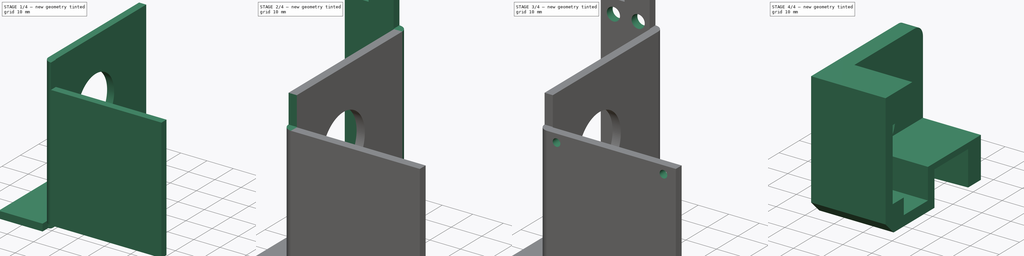
[diagram: build sequence overview — one tinted view per stage of 4, left to right]
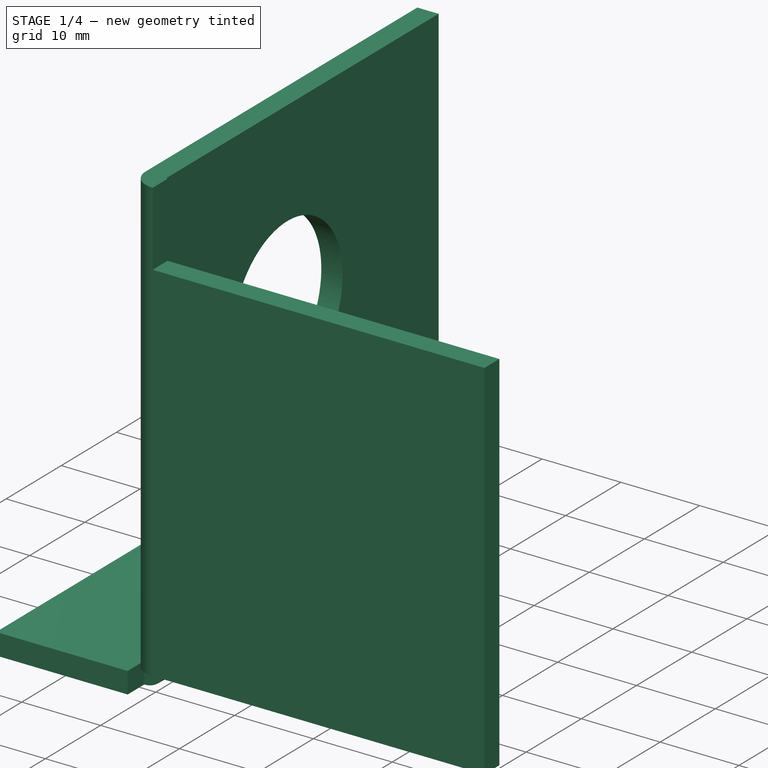
[diagram: stage 1 of 4 — iso view after this stage's code; geometry added in this stage tinted green]
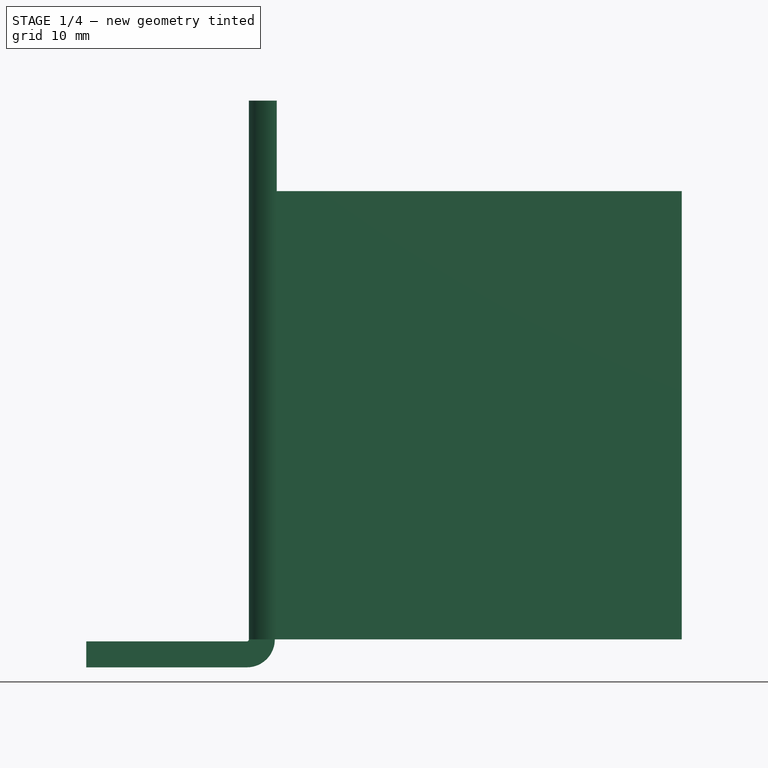
[diagram: stage 1 of 4 — front view after this stage's code; geometry added in this stage tinted green]
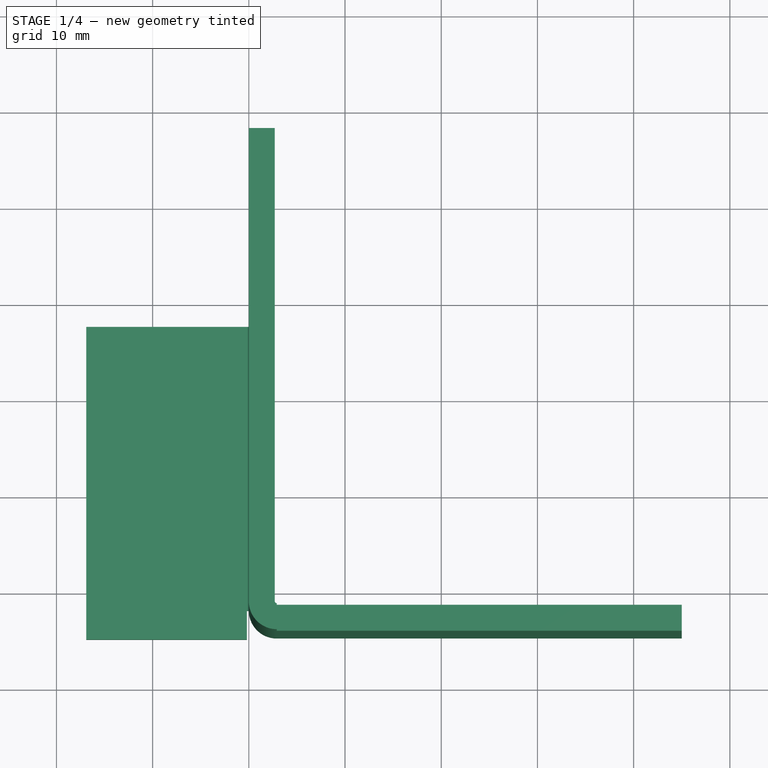
[diagram: stage 1 of 4 — top view after this stage's code; geometry added in this stage tinted green]
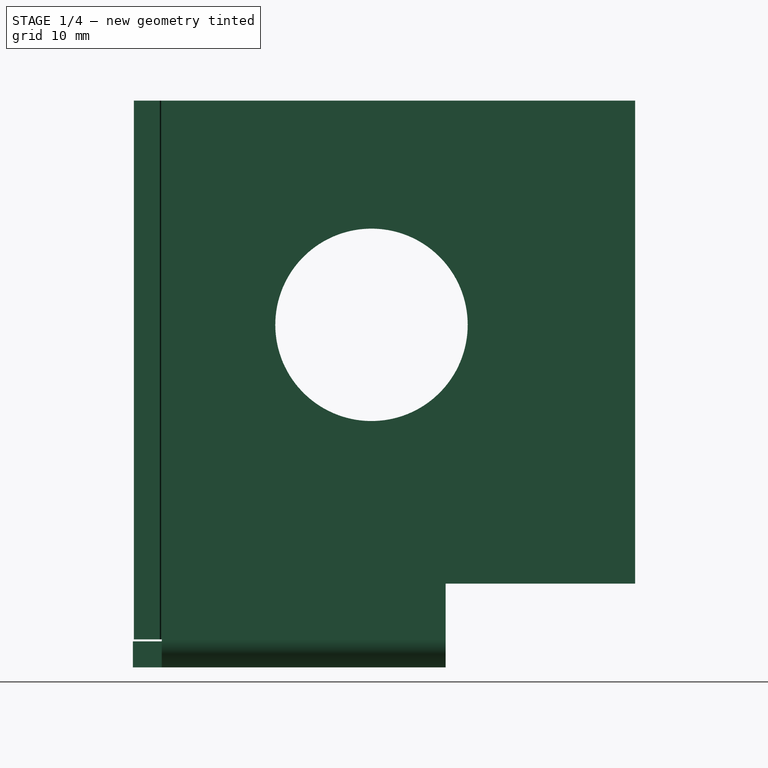
[diagram: stage 1 of 4 — right view after this stage's code; geometry added in this stage tinted green]
FCSTD DOCUMENT  (FreeCAD 2024.2R37240 (Git))
Label: Sovol SV04 Extruder Bracket Left
License: All rights reserved
LicenseURL: https://en.wikipedia.org/wiki/All_rights_reserved
objects: Sketcher::SketchObject×8, PartDesign::Pad×4, PartDesign::FeaturePython×3, PartDesign::Pocket×3, PartDesign::Body×2, App::VarSet×1, PartDesign::Hole×1, PartDesign::ShapeBinder×1
note: 30 computed .brp shape members not serialized (recipe doc carries the construction recipe); baked Part::Feature solids carry a one-line shape summary decoded from their .brp

FEATURE [Sketcher::SketchObject] Sketch
  AttachmentSupport = -> [YZ_Plane]
  FullyConstrained = false
  MapMode = 5
  Placement = pos=(0,0,0) rot=(0.57735,0.57735,0.57735;2.0944rad)
  sketch-geometry (7):
    g0: LineSegment StartX=-21.8 StartY=23.3 StartZ=0 EndX=-21.8 EndY=-32.7 EndZ=0
    g1: LineSegment StartX=7.7 StartY=-26.9 StartZ=0 EndX=27.4 EndY=-26.9 EndZ=0
    g2: LineSegment StartX=27.4 StartY=-26.9 StartZ=0 EndX=27.4 EndY=23.3 EndZ=0
    g3: LineSegment StartX=27.4 StartY=23.3 StartZ=0 EndX=-21.8 EndY=23.3 EndZ=0
    g4: LineSegment StartX=7.7 StartY=-26.9 StartZ=0 EndX=7.7 EndY=-32.7 EndZ=0
    g5: LineSegment StartX=7.7 StartY=-32.7 StartZ=0 EndX=-21.8 EndY=-32.7 EndZ=0
    g6: Circle CenterX=0 CenterY=0 CenterZ=0 NormalX=0 NormalY=0 NormalZ=1 AngleXU=0 Radius=10
  constraints (19):
    c: Coincident(g1,g2)
    c: Coincident(g2,g3)
    c: Coincident(g3,g0)
    c: Vertical(g0)
    c: Vertical(g2)
    c: Horizontal(g1)
    c: Horizontal(g3)
    c: DistanceX(g3,g3) = 49.2
    c: Coincident(g4,g5)
    c: Coincident(g5,g0)
    c: Coincident(g1,g4)
    c: DistanceY(g2,g2) = 50.2
    c: Horizontal(g5)
    c: Vertical(g4)
    c: DistanceY(g4,g4) = 5.8
    c: DistanceX(g5,g5) = 29.5
    c: Coincident(g-1,g6)
    c: Distance(g6,g2) = 27.4
    c: Distance(g6,g3) = 23.3
FEATURE [PartDesign::Pad] Pad
  Direction = (1,0,0)
  Length = 2.7
  Length2 = 10
  Placement = pos=(0,0,0) rot=(0.57735,0.57735,0.57735;2.0944rad)
  Profile = -> Sketch
  ReferenceAxis = -> Sketch [N_Axis]
  Refine = true
  Suppressed = false
  Type = 0
FEATURE [PartDesign::FeaturePython] Bend  # WARN: FeaturePython — macro-defined, semantics opaque (R4)
  AutoMiter = true
  BaseFeature = -> Pad
  BendType = 0
  LengthList = [42.1]
  LengthSpec = 0
  ReliefFactor = 0.7
  Suppressed = false
  UseReliefFactor = false
  angle = 90
  baseObject = -> Pad [Face4]
  bendAList = [90]
  extend1 = -9.4
  extend2 = 0
  gap1 = 0
  gap2 = 0
  invert = false
  kfactor = 0.5
  length = 42.1
  maxExtendDist = 5
  minGap = 0.2
  minReliefGap = 1
  miterangle1 = 0
  miterangle2 = 0
  offset = 0
  radius = 0.2
  reliefType = 0
  reliefd = 1
  reliefw = 0.8
  sketchflip = false
  sketchinvert = false
  unfold = false
FEATURE [App::VarSet] VarSet
  BendRadius = 1
FEATURE [PartDesign::FeaturePython] Bend001  # WARN: FeaturePython — macro-defined, semantics opaque (R4)
  AutoMiter = true
  BaseFeature = -> Bend
  BendType = 0
  LengthList = [16.7]
  LengthSpec = 0
  ReliefFactor = 0.7
  Suppressed = false
  UseReliefFactor = false
  angle = 90
  baseObject = -> Bend [Face14]
  bendAList = [90]
  extend1 = 0
  extend2 = 3
  gap1 = 0
  gap2 = 0
  invert = true
  kfactor = 0.5
  length = 16.7
  maxExtendDist = 5
  minGap = 0.2
  minReliefGap = 1
  miterangle1 = 0
  miterangle2 = 0
  offset = 0
  radius = 0.2
  reliefType = 0
  reliefd = 1
  reliefw = 0.8
  sketchflip = false
  sketchinvert = false
  unfold = false
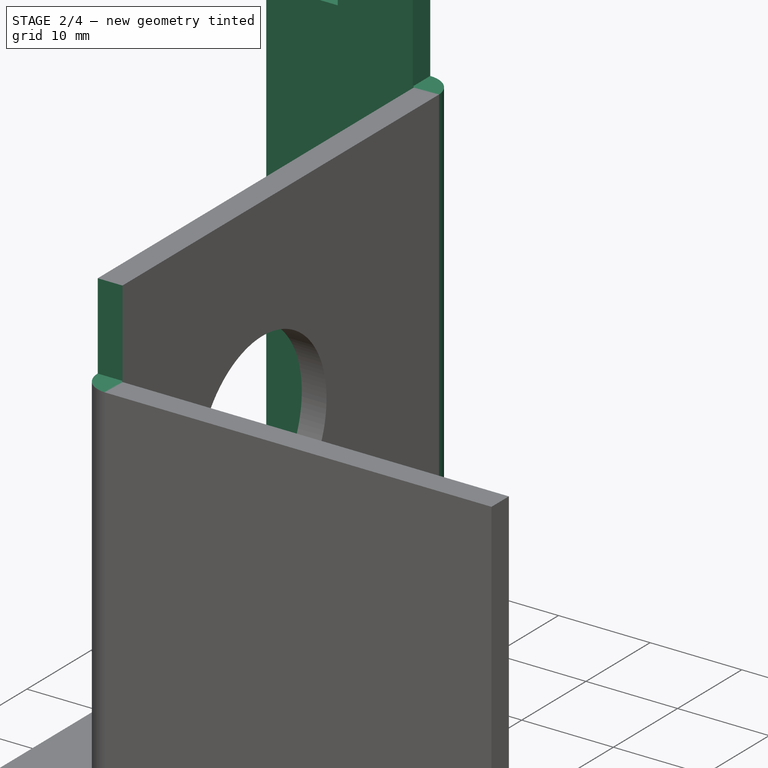
[diagram: stage 2 of 4 — iso view after this stage's code; geometry added in this stage tinted green]
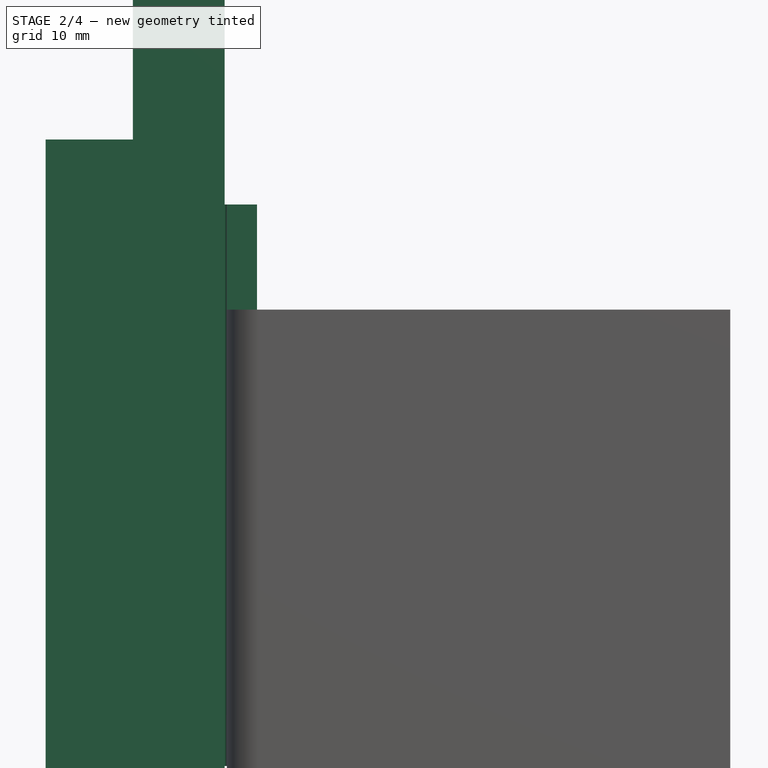
[diagram: stage 2 of 4 — front view after this stage's code; geometry added in this stage tinted green]
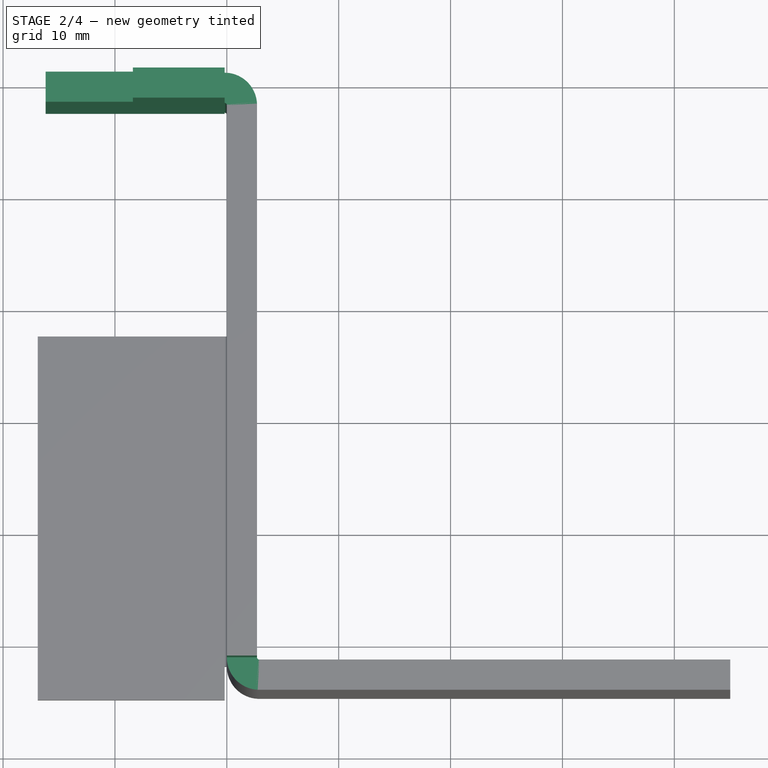
[diagram: stage 2 of 4 — top view after this stage's code; geometry added in this stage tinted green]
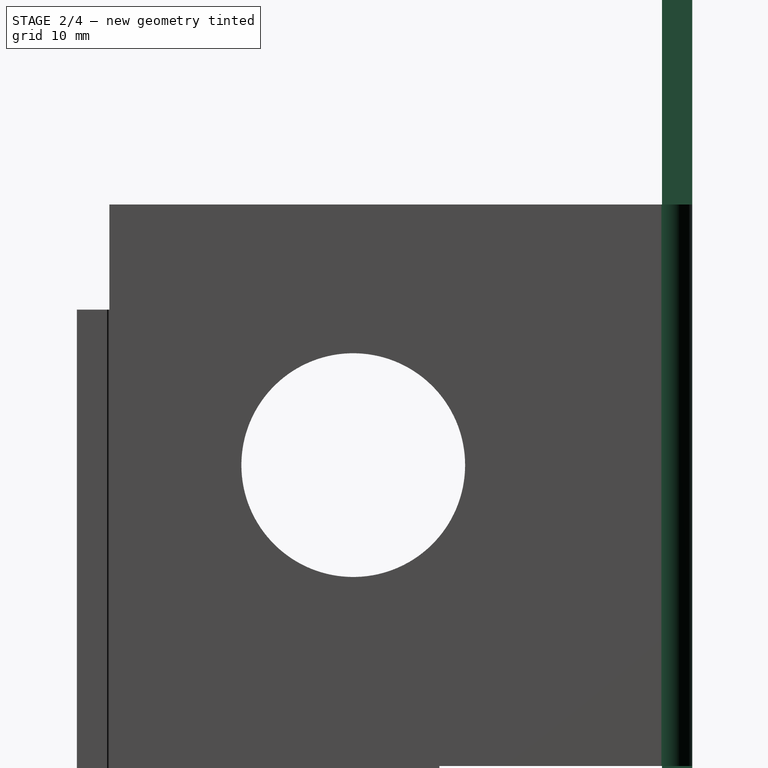
[diagram: stage 2 of 4 — right view after this stage's code; geometry added in this stage tinted green]
FEATURE [PartDesign::FeaturePython] Bend002  # WARN: FeaturePython — macro-defined, semantics opaque (R4)
  AutoMiter = true
  BaseFeature = -> Bend001
  BendType = 0
  LengthList = [16]
  LengthSpec = 0
  ReliefFactor = 0.7
  Suppressed = false
  UseReliefFactor = false
  angle = 90
  baseObject = -> Bend001 [Face19]
  bendAList = [90]
  extend1 = 5.8
  extend2 = 5.8
  gap1 = 0
  gap2 = 0
  invert = true
  kfactor = 0.5
  length = 16
  maxExtendDist = 5
  minGap = 0.2
  minReliefGap = 1
  miterangle1 = 0
  miterangle2 = 0
  offset = 0
  radius = 0.2
  reliefType = 0
  reliefd = 1
  reliefw = 0.8
  sketchflip = false
  sketchinvert = false
  unfold = false
FEATURE [Sketcher::SketchObject] Sketch001
  AttachmentSupport = -> [Bend002]
  ExternalGeometry = -> [Bend002]
  FullyConstrained = true
  MapMode = 5
  Placement = pos=(0,30.3,1e-14) rot=(0,0.707107,0.707107;3.14159rad)
  sketch-geometry (4):
    g0: LineSegment StartX=0.2 StartY=29.1 StartZ=0 EndX=0.2 EndY=50.1 EndZ=0
    g1: LineSegment StartX=0.2 StartY=50.1 StartZ=0 EndX=8.4 EndY=50.1 EndZ=0
    g2: LineSegment StartX=8.4 StartY=50.1 StartZ=0 EndX=8.4 EndY=29.1 EndZ=0
    g3: LineSegment StartX=8.4 StartY=29.1 StartZ=0 EndX=0.2 EndY=29.1 EndZ=0
  constraints (11):
    c: Coincident(g-3,g0)
    c: Vertical(g0)
    c: Coincident(g0,g1)
    c: Horizontal(g1)
    c: Coincident(g1,g2)
    c: PointOnObject(g2,g-3)
    c: Vertical(g2)
    c: Coincident(g2,g3)
    c: Coincident(g3,g0)
    c: DistanceY(g2,g2) = 21
    c: DistanceX(g1,g1) = 8.2
FEATURE [PartDesign::Pad] Pad001
  BaseFeature = -> Bend002
  Direction = (0,1,-2e-16)
  Length = 10
  Length2 = 10
  Profile = -> Sketch001
  ReferenceAxis = -> Sketch001 [N_Axis]
  Refine = true
  Suppressed = false
  Type = 3
  UpToFace = -> Bend002 [Face2]
FEATURE [PartDesign::Pocket] Pocket
  BaseFeature = -> Pad001
  Direction = (3e-16,-1e-16,-1)
  Length = 0
  Length2 = 5
  Profile = -> Bend002 [Face15]
  Refine = true
  Suppressed = false
  Type = 3
  UpToFace = -> Pad001 [Face24]
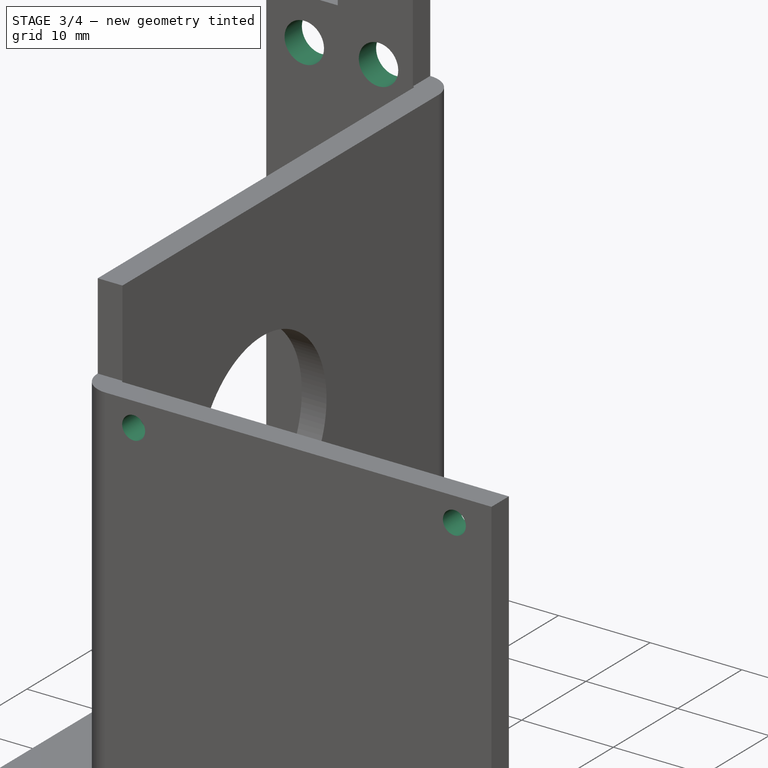
[diagram: stage 3 of 4 — iso view after this stage's code; geometry added in this stage tinted green]
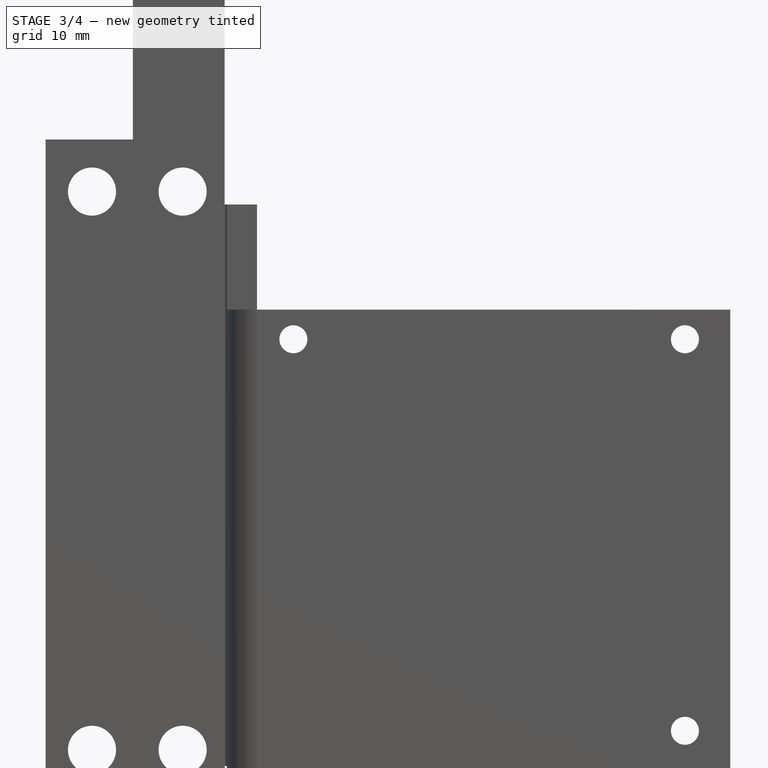
[diagram: stage 3 of 4 — front view after this stage's code; geometry added in this stage tinted green]
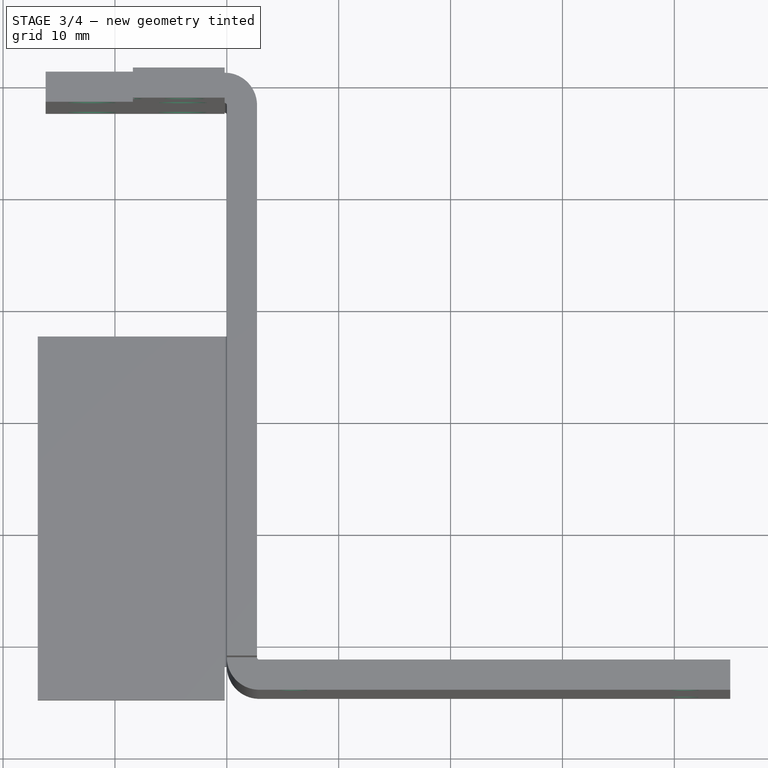
[diagram: stage 3 of 4 — top view after this stage's code; geometry added in this stage tinted green]
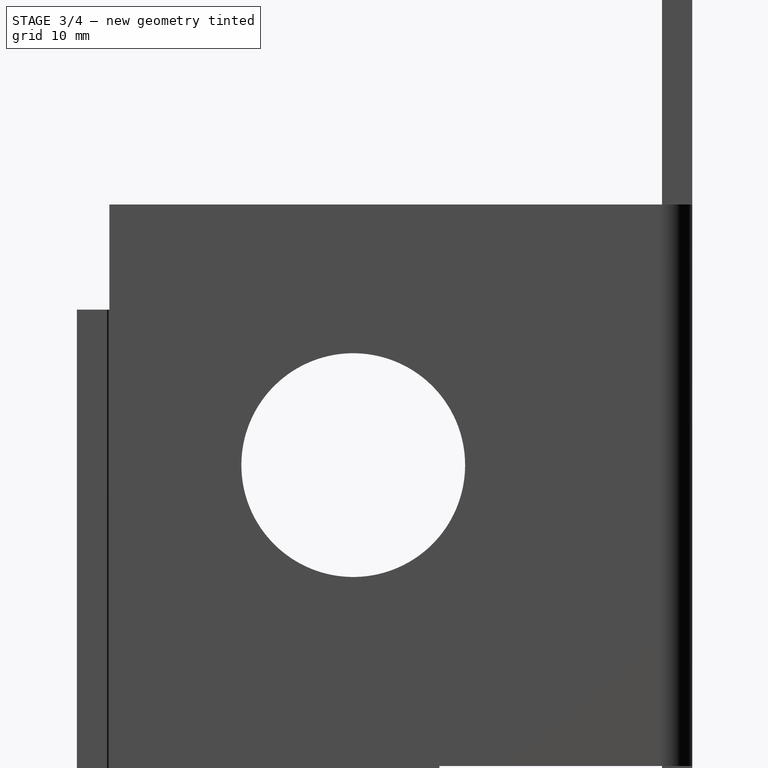
[diagram: stage 3 of 4 — right view after this stage's code; geometry added in this stage tinted green]
FEATURE [Sketcher::SketchObject] Sketch006
  AttachmentSupport = -> [Pocket]
  ExternalGeometry = -> [Pocket]
  FullyConstrained = true
  MapMode = 5
  Placement = pos=(7.6e-15,30.3,0) rot=(0,0.707107,0.707107;3.14159rad)
  sketch-geometry (7):
    g0: Circle CenterX=12.05 CenterY=24.45 CenterZ=0 NormalX=0 NormalY=0 NormalZ=1 AngleXU=0 Radius=2.15
    g1: Circle CenterX=3.95 CenterY=24.45 CenterZ=0 NormalX=0 NormalY=0 NormalZ=1 AngleXU=0 Radius=2.15
    g2: Circle CenterX=12.05 CenterY=-25.45 CenterZ=0 NormalX=0 NormalY=0 NormalZ=1 AngleXU=0 Radius=2.15
    g3: Circle CenterX=3.95 CenterY=-25.45 CenterZ=0 NormalX=0 NormalY=0 NormalZ=1 AngleXU=0 Radius=2.15
    g4: Circle CenterX=3.8 CenterY=44.9 CenterZ=0 NormalX=0 NormalY=0 NormalZ=1 AngleXU=0 Radius=1.8
    g5: ArcOfCircle CenterX=9.4 CenterY=44.9 CenterZ=0 NormalX=0 NormalY=0 NormalZ=1 AngleXU=0 Radius=1.8 StartAngle=2.15983 EndAngle=4.12336
    g6: LineSegment StartX=8.4 StartY=43.4033 StartZ=0 EndX=8.4 EndY=46.3967 EndZ=0
  constraints (22):
    c: Equal(g1,g0)
    c: Horizontal(g1,g0)
    c: Horizontal(g3,g2)
    c: Diameter(g1) = 4.3
    c: Equal(g2,g3)
    c: Equal(g3,g1)
    c: Vertical(g3,g1)
    c: Distance(g0,g-5) = 2
    c: Distance(g1,g-8) = 1.6
    c: Vertical(g2,g0)
    c: Distance(g4,g-8) = 1.8
    c: Distance(g4,g-4) = 3.4
    c: Diameter(g4) = 3.6
    c: PointOnObject(g5,g-9)
    c: PointOnObject(g5,g-9)
    c: Equal(g4,g5)
    c: Horizontal(g5,g4)
    c: Distance(g5,g4) = 2
    c: Coincident(g5,g6)
    c: Coincident(g5,g6)
    c: Distance(g0,g-3) = 2.5
    c: Distance(g2,g-6) = 5.1
FEATURE [PartDesign::Pocket] Pocket002
  BaseFeature = -> Pocket
  Direction = (0,-1,2e-16)
  Length = 5
  Length2 = 5
  Profile = -> Sketch006
  ReferenceAxis = -> Sketch006 [N_Axis]
  Refine = true
  Suppressed = false
  Type = 2
FEATURE [Sketcher::SketchObject] Sketch007
  AttachmentSupport = -> [Pocket002]
  ExternalGeometry = -> [Pocket002]
  FullyConstrained = true
  MapMode = 5
  Placement = pos=(0,-24.7,-8.2e-15) rot=(1,0,0;1.5708rad)
  sketch-geometry (3):
    g0: Circle CenterX=40.95 CenterY=11.25 CenterZ=0 NormalX=0 NormalY=0 NormalZ=1 AngleXU=0 Radius=1.15
    g1: Circle CenterX=5.95 CenterY=11.25 CenterZ=0 NormalX=0 NormalY=0 NormalZ=1 AngleXU=0 Radius=1.15
    g2: Circle CenterX=40.95 CenterY=-23.75 CenterZ=0 NormalX=0 NormalY=0 NormalZ=1 AngleXU=0 Radius=1.15
  constraints (9):
    c: Diameter(g0) = 2.3
    c: Distance(g0,g-3) = 1.5
    c: Equal(g1,g0)
    c: Horizontal(g1,g0)
    c: DistanceX(g1,g0) = 35
    c: Distance(g0,g-4) = 2.9
    c: Equal(g2,g0)
    c: Vertical(g0,g2)
    c: DistanceY(g2,g0) = 35
FEATURE [PartDesign::Hole] Hole
  BaseFeature = -> Pocket002
  CustomThreadClearance = 0
  Depth = 25
  DepthType = 0
  Diameter = 2.5
  DrillForDepth = false
  DrillPoint = 1
  DrillPointAngle = 118
  HoleCutCountersinkAngle = 90
  HoleCutCustomValues = false
  HoleCutDepth = 0
  HoleCutDiameter = 6.1
  HoleCutType = 0
  ModelThread = false
  Profile = -> Sketch007
  Refine = true
  Suppressed = false
  Tapered = false
  TaperedAngle = 90
  ThreadClass = 0
  ThreadDepth = 25
  ThreadDepthType = 0
  ThreadDirection = 0
  ThreadFit = 0
  ThreadSize = 9
  ThreadType = 1
  Threaded = true
  UseCustomThreadClearance = false
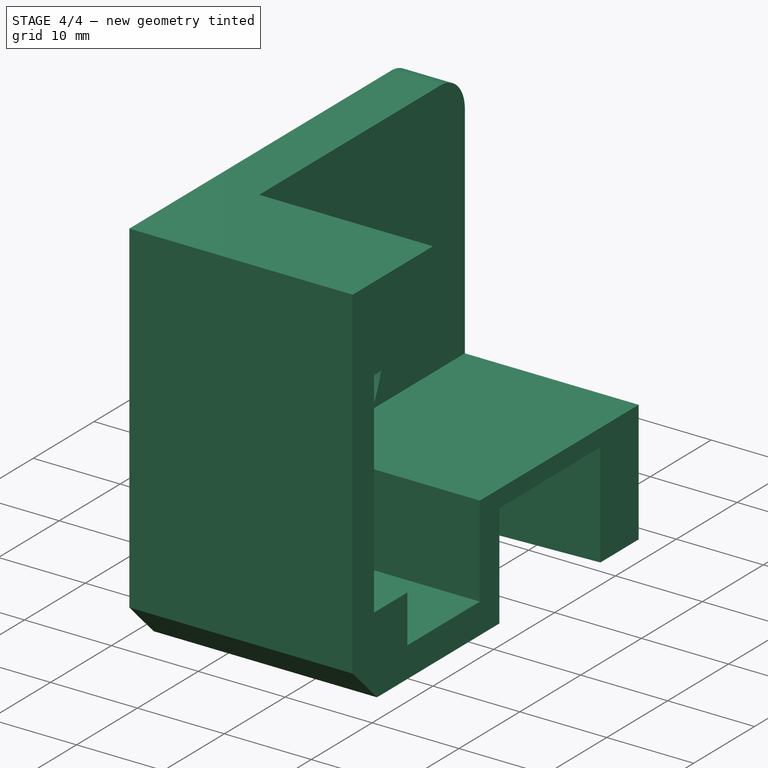
[diagram: stage 4 of 4 — iso view after this stage's code; geometry added in this stage tinted green]
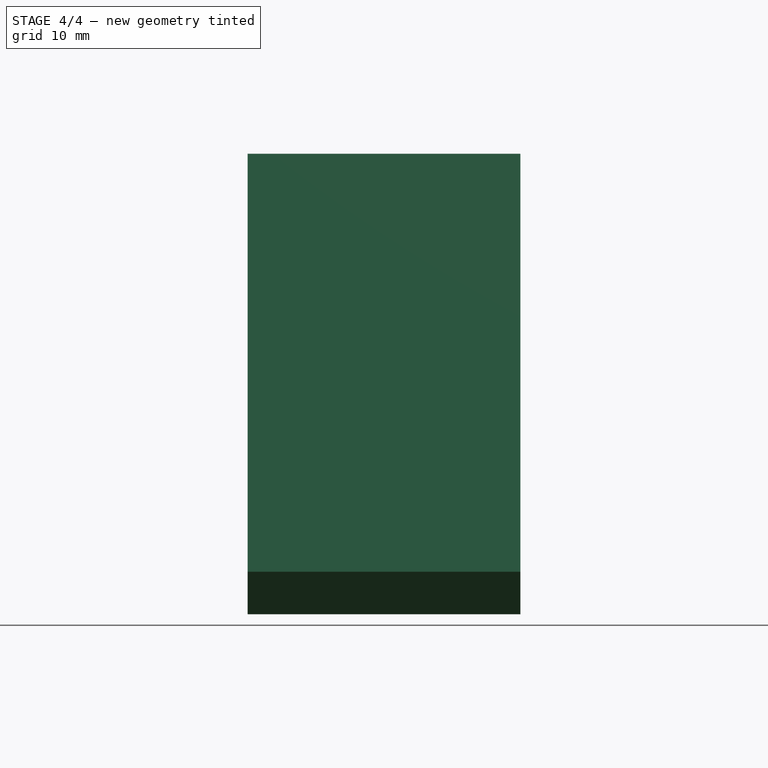
[diagram: stage 4 of 4 — front view after this stage's code; geometry added in this stage tinted green]
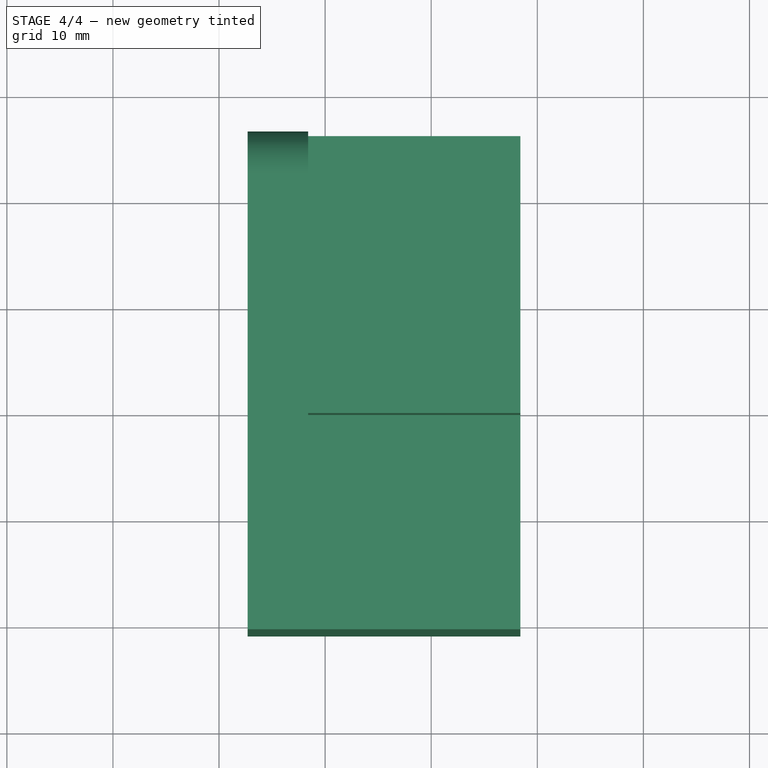
[diagram: stage 4 of 4 — top view after this stage's code; geometry added in this stage tinted green]
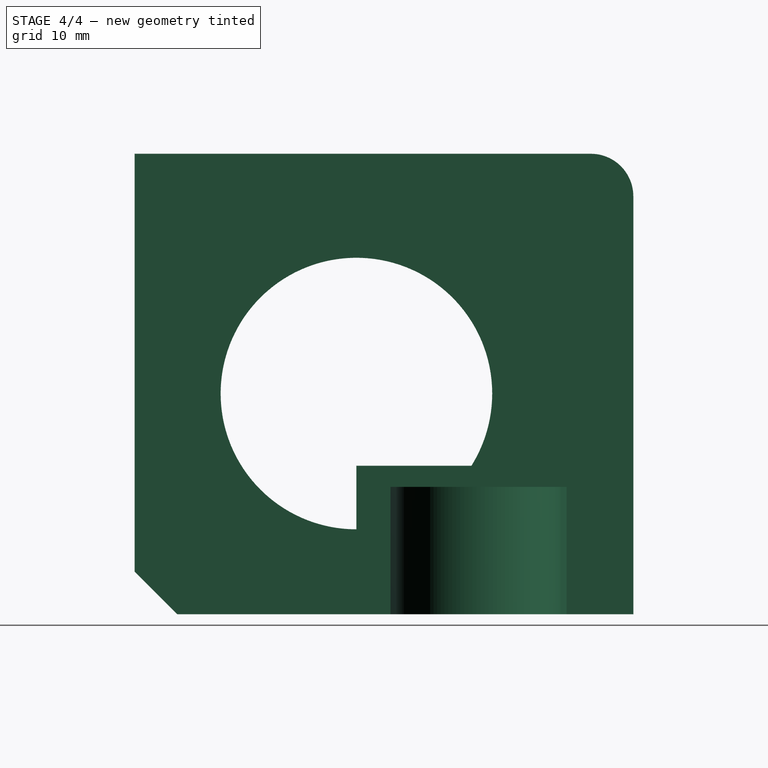
[diagram: stage 4 of 4 — right view after this stage's code; geometry added in this stage tinted green]
FEATURE [PartDesign::Body] Body
  Group = -> [Sketch,Pad,Bend,Bend001,Bend002,Sketch001,Pad001,Pocket,Sketch006,Pocket002,Sketch007,Hole]
  Origin = -> Origin
  Tip = -> Hole
FEATURE [PartDesign::ShapeBinder] ShapeBinder
  Support = -> [Body]
  TraceSupport = false
FEATURE [Sketcher::SketchObject] Sketch002
  AttachmentSupport = -> [ShapeBinder]
  ExternalGeometry = -> [ShapeBinder]
  FullyConstrained = false
  MapMode = 5
  Placement = pos=(-8.4,0,0) rot=(0.57735,-0.57735,-0.57735;2.0944rad)
  sketch-geometry (7):
    g0: LineSegment StartX=-20.9 StartY=22.6 StartZ=0 EndX=22.1 EndY=22.6 EndZ=0
    g1: LineSegment StartX=-16.9 StartY=-20.8 StartZ=0 EndX=26.1 EndY=-20.8 EndZ=0
    g2: ArcOfCircle CenterX=22.1 CenterY=18.6 CenterZ=0 NormalX=0 NormalY=0 NormalZ=1 AngleXU=0 Radius=4 StartAngle=0 EndAngle=1.5708
    g3: LineSegment StartX=26.1 StartY=18.6 StartZ=0 EndX=26.1 EndY=-20.8 EndZ=0
    g4: LineSegment StartX=-20.9 StartY=-16.8 StartZ=0 EndX=-20.9 EndY=22.6 EndZ=0
    g5: Circle CenterX=0 CenterY=0 CenterZ=0 NormalX=0 NormalY=0 NormalZ=1 AngleXU=0 Radius=12.8
    g6: LineSegment StartX=-16.9 StartY=-20.8 StartZ=0 EndX=-20.9 EndY=-16.8 EndZ=0
  constraints (17):
    c: Horizontal(g0)
    c: Horizontal(g1)
    c: Distance(g1,g0) = 43.4
    c: Coincident(g3,g1)
    c: Vertical(g3)
    c: Tangent(g2,g0) = 1.5708
    c: Tangent(g2,g3) = 1.5708
    c: Coincident(g4,g0)
    c: Vertical(g4)
    c: Distance(g3,g4) = 47
    c: DistanceX(g4,g1) = 4
    c: Radius(g2) = 4
    c: Coincident(g5,g-1)
    c: Diameter(g5) = 25.6
    c: Coincident(g6,g1)
    c: Angle(g6,g1) = 0.785398
    c: Coincident(g4,g6)
FEATURE [PartDesign::Pad] Pad002
  Direction = (-1,0,0)
  Length = 5.7
  Length2 = 10
  Profile = -> Sketch002
  ReferenceAxis = -> Sketch002 [N_Axis]
  Refine = true
  Suppressed = false
  Type = 0
FEATURE [Sketcher::SketchObject] Sketch003
  AttachmentSupport = -> [Pad002]
  ExternalGeometry = -> [ShapeBinder,Pad002]
  FullyConstrained = false
  MapMode = 5
  Placement = pos=(-14.1,0,0) rot=(0.57735,-0.57735,-0.57735;2.0944rad)
  expr: Constraints[1] = Sketch002.Constraints[2]
  expr: Constraints[5] = Sketch002.Constraints[10]
  expr: Constraints[6] = Sketch002.Constraints[11]
  expr: Constraints[8] = Sketch002.Constraints[13]
  sketch-geometry (21):
    g0: LineSegment StartX=-20.9 StartY=22.6 StartZ=0 EndX=22.1 EndY=22.6 EndZ=0
    g1: ArcOfCircle CenterX=22.1 CenterY=18.6 CenterZ=0 NormalX=0 NormalY=0 NormalZ=1 AngleXU=0 Radius=4 StartAngle=5e-16 EndAngle=1.5708
    g2: LineSegment StartX=26.1 StartY=18.6 StartZ=0 EndX=26.1 EndY=11.3725 EndZ=0
    g3: Circle CenterX=0 CenterY=0 CenterZ=0 NormalX=0 NormalY=0 NormalZ=1 AngleXU=0 Radius=12.8
    g4: LineSegment StartX=26.1 StartY=-6.8 StartZ=0 EndX=0 EndY=-6.8 EndZ=0
    g5: LineSegment StartX=0 StartY=-17.3 StartZ=0 EndX=-11.9 EndY=-17.3 EndZ=0
    g6: LineSegment StartX=-11.9 StartY=-11.8 StartZ=0 EndX=-17.4 EndY=-11.8 EndZ=0
    g7: LineSegment StartX=-17.4 StartY=12.9 StartZ=0 EndX=-11.9 EndY=12.9 EndZ=0
    g8: LineSegment StartX=-11.9 StartY=16.9 StartZ=0 EndX=-7.7 EndY=16.9 EndZ=0
    g9: GeomPoint X=-14.9 Y=-15.1 Z=0
    g10: GeomPoint X=-14.9 Y=16.9 Z=0
    g11: LineSegment StartX=-20.9 StartY=-16.8 StartZ=0 EndX=-20.9 EndY=22.6 EndZ=0
    g12: LineSegment StartX=-16.9 StartY=-20.8 StartZ=0 EndX=26.1 EndY=-20.8 EndZ=0
    g13: LineSegment StartX=26.1 StartY=-20.8 StartZ=0 EndX=26.1 EndY=-6.8 EndZ=0
    g14: LineSegment StartX=0 StartY=-17.3 StartZ=0 EndX=0 EndY=-6.8 EndZ=0
    g15: LineSegment StartX=-11.9 StartY=-11.8 StartZ=0 EndX=-11.9 EndY=-17.3 EndZ=0
    g16: LineSegment StartX=-17.4 StartY=-11.8 StartZ=0 EndX=-17.4 EndY=12.9 EndZ=0
    g17: LineSegment StartX=-11.9 StartY=12.9 StartZ=0 EndX=-11.9 EndY=16.9 EndZ=0
    g18: LineSegment StartX=-7.7 StartY=16.9 StartZ=0 EndX=-7.7 EndY=22.6 EndZ=0
    g19: LineSegment StartX=-7.7 StartY=22.6 StartZ=0 EndX=-20.9 EndY=22.6 EndZ=0
    g20: LineSegment StartX=-20.9 StartY=-16.8 StartZ=0 EndX=-16.9 EndY=-20.8 EndZ=0
  constraints (55):
    c: Horizontal(g0)
    c: Distance(g12,g0) = 43.4
    c: Vertical(g2)
    c: Tangent(g1,g0) = 1.5708
    c: Tangent(g1,g2) = 1.5708
    c: DistanceX(g11,g12) = 4
    c: Radius(g1) = 4
    c: Coincident(g3,g-1)
    c: Diameter(g3) = 25.6
    c: PointOnObject(g4,g2)
    c: Horizontal(g4)
    c: Horizontal(g5)
    c: Horizontal(g6)
    c: Horizontal(g8)
    c: PointOnObject(g18,g0)
    c: Horizontal(g7)
    c: Distance(g12,g4) = 14
    c: Vertical(g4,g3)
    c: Distance(g12,g5) = 3.5
    c: Vertical(g10,g9)
    c: DistanceY(g9,g10) = 32
    c: Distance(g7,g6) = 24.7
    c: Distance(g9,g2) = 41
    c: Equal(g7,g6)
    c: DistanceY(g7,g8) = 4
    c: Coincident(g11,g0)
    c: Horizontal(g12)
    c: Distance(g12,g6) = 9
    c: Coincident(g12,g13)
    c: Coincident(g13,g4)
    c: Vertical(g13)
    c: Coincident(g5,g14)
    c: Coincident(g14,g4)
    c: Vertical(g14)
    c: Coincident(g6,g15)
    c: Coincident(g15,g5)
    c: Vertical(g15)
    c: DistanceX(g6,g6) = 5.5
    c: Coincident(g6,g16)
    c: Coincident(g16,g7)
    c: Vertical(g16)
    c: Distance(g11,g16) = 3.5
    c: Distance(g9,g12) = 5.7
    c: Coincident(g7,g17)
    c: Coincident(g17,g8)
    c: Vertical(g17)
    c: Coincident(g8,g18)
    c: Vertical(g18)
    c: DistanceX(g0,g18) = 13.2
    c: Coincident(g18,g19)
    c: Coincident(g19,g0)
    c: Distance(g9,g11) = 6
    c: Coincident(g11,g20)
    c: Coincident(g20,g12)
    c: Angle(g20,g12) = 0.785398
FEATURE [PartDesign::Pad] Pad003
  BaseFeature = -> Pad002
  Direction = (-1,0,0)
  Length = 20
  Length2 = 10
  Profile = -> Sketch003
  ReferenceAxis = -> Sketch003 [N_Axis]
  Refine = true
  Suppressed = false
  Type = 0
FEATURE [Sketcher::SketchObject] Sketch004
  AttachmentSupport = -> [Pad003]
  ExternalGeometry = -> [Pad003]
  FullyConstrained = true
  MapMode = 5
  Placement = pos=(0,0,-20.8) rot=(1,0,0;3.14159rad)
  sketch-geometry (4):
    g0: ArcOfCircle CenterX=-23.855 CenterY=11.513 CenterZ=0 NormalX=0 NormalY=0 NormalZ=1 AngleXU=0 Radius=13.1706 StartAngle=2.50777 EndAngle=3.77541
    g1: LineSegment StartX=-34.4675 StartY=19.313 StartZ=0 EndX=-34.1 EndY=19.813 EndZ=0
    g2: LineSegment StartX=-34.1 StartY=19.813 StartZ=0 EndX=-34.1 EndY=3.213 EndZ=0
    g3: LineSegment StartX=-34.1 StartY=3.213 StartZ=0 EndX=-34.4675 EndY=3.713 EndZ=0
  constraints (11):
    c: Distance(g0,g-3) = 14.587
    c: Distance(g0,g-4) = 10.245
    c: DistanceY(g0,g0) = 15.6
    c: Tangent(g0,g1) = 1.5708
    c: Coincident(g1,g2)
    c: Coincident(g2,g3)
    c: Tangent(g3,g0) = 1.5708
    c: DistanceY(g2,g2) = 16.6
    c: PointOnObject(g2,g-4)
    c: Equal(g3,g1)
    c: PointOnObject(g1,g-4)
FEATURE [PartDesign::Pocket] Pocket001
  BaseFeature = -> Pad003
  Direction = (0,0,1)
  Length = 5
  Length2 = 5
  Offset = -2
  Profile = -> Sketch004
  ReferenceAxis = -> Sketch004 [N_Axis]
  Refine = true
  Suppressed = false
  Type = 2
FEATURE [Sketcher::SketchObject] Sketch005
  AttachmentSupport = -> [Pocket001]
  FullyConstrained = true
  MapMode = 5
  Placement = pos=(28.4,0,0) rot=(0.57735,0.57735,0.57735;2.0944rad)
FEATURE [PartDesign::Body] Body001
  Group = -> [ShapeBinder,Sketch002,Pad002,Sketch003,Pad003,Sketch004,Pocket001,Sketch005]
  Origin = -> Origin001
  Tip = -> Pocket001
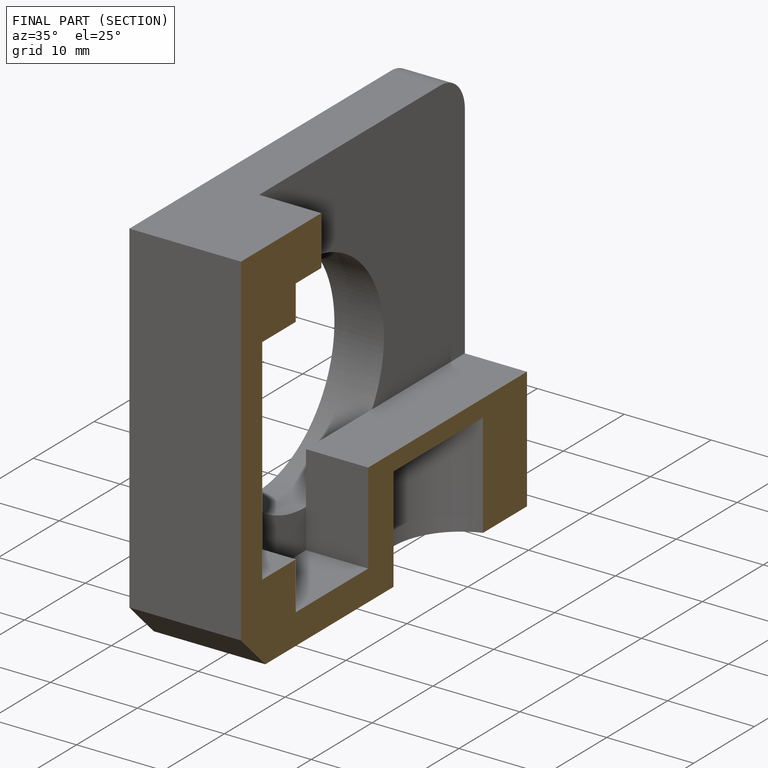
[diagram: finished part — half-section view (interior)]
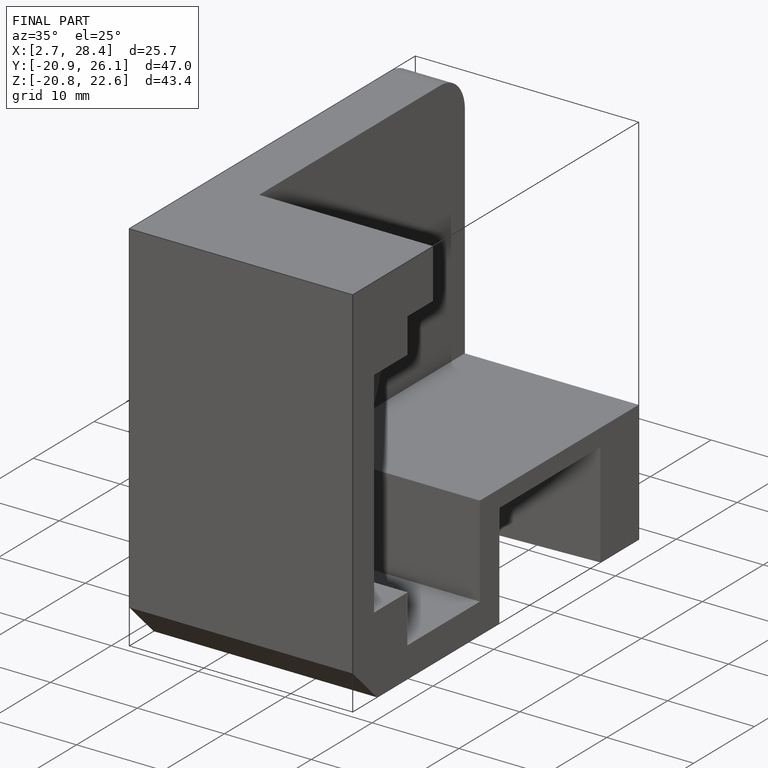
[diagram: finished part — iso view with bounding-box wireframe]
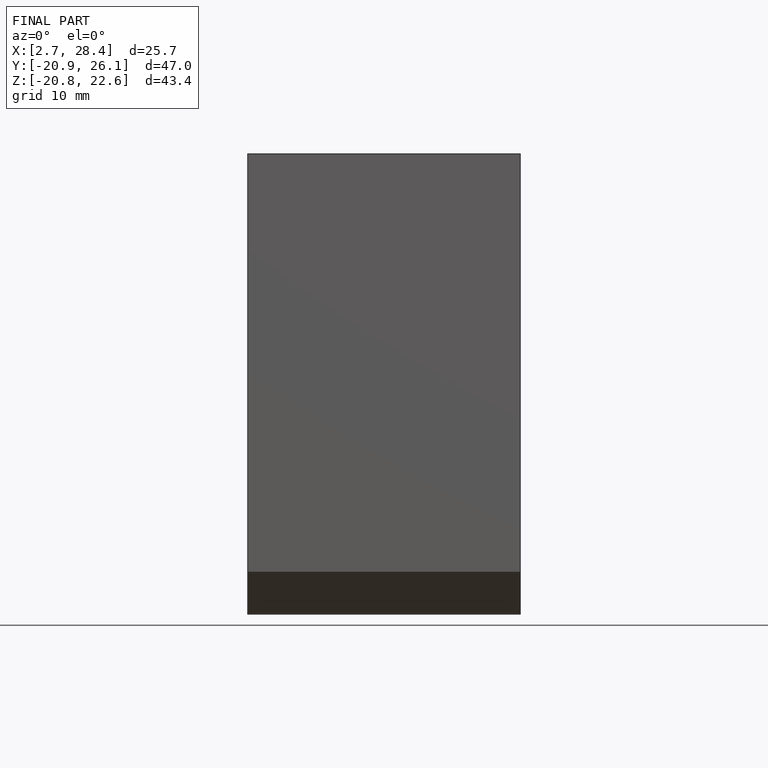
[diagram: finished part — front view with bounding-box wireframe]
